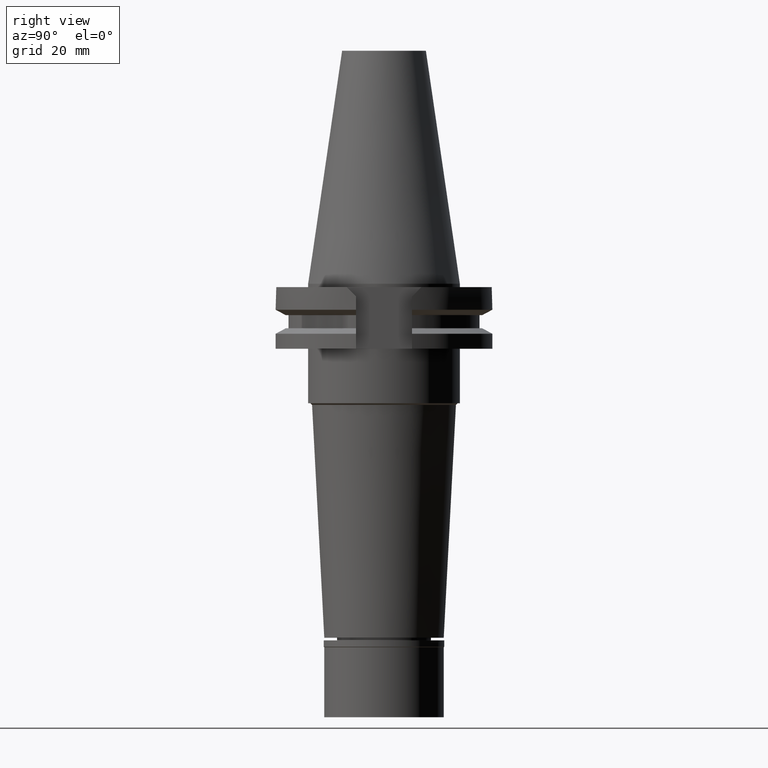
[diagram: clean part render]
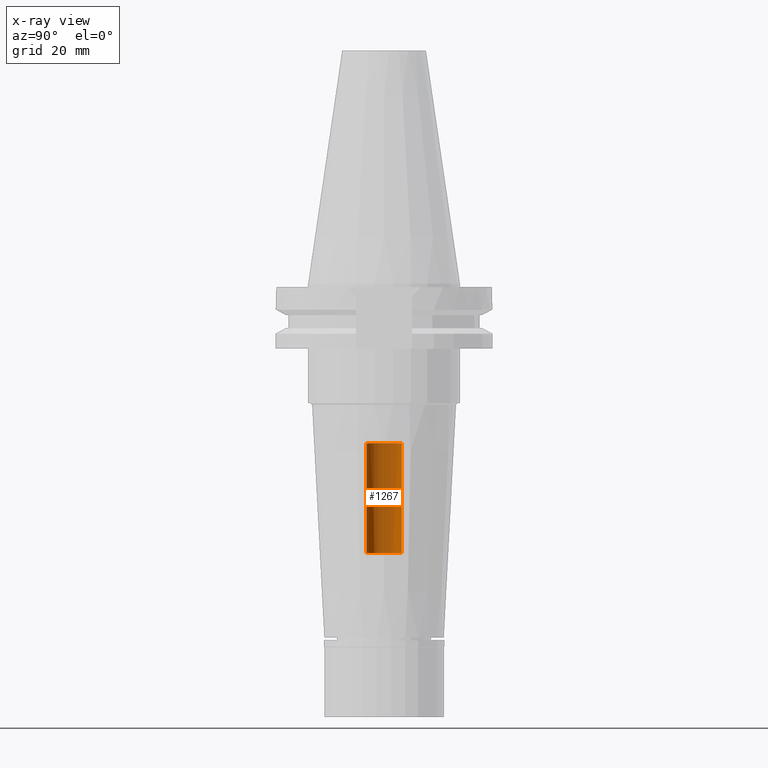
[diagram: x-ray — body ghosted, one internal face saturated and labeled with its STEP entity id]
A machine part, right view, then the same camera in x-ray: the body is ghosted and one INTERNAL B-rep face — a face not visible from any outside direction — is saturated and labeled: STEP entity #1267.
In plain terms, the highlighted cylindrical surface (edge-blend (fillet) strip) has radius 5.2 mm, axis along (0, 0, -1).
Its self-contained STEP definition (entity closure, byte-faithful):
#16 = CYLINDRICAL_SURFACE ( 'NONE', #1878, 5.200000000000000178 ) ;
#129 = ORIENTED_EDGE ( 'NONE', *, *, #2581, .T. ) ;
#488 = DIRECTION ( 'NONE',  ( 0.0000000000000000000, 1.000000000000000000, 0.0000000000000000000 ) ) ;
#516 = EDGE_LOOP ( 'NONE', ( #129, #2124, #1113, #973 ) ) ;
#540 = CIRCLE ( 'NONE', #2702, 5.200000000000000178 ) ;
#631 = CARTESIAN_POINT ( 'NONE',  ( 0.0000000000000000000, 2.175921816554999513E-14, -79.00000000000000000 ) ) ;
#771 = VERTEX_POINT ( 'NONE', #2456 ) ;
#782 = FACE_OUTER_BOUND ( 'NONE', #516, .T. ) ;
#783 = DIRECTION ( 'NONE',  ( 0.0000000000000000000, 0.0000000000000000000, 1.000000000000000000 ) ) ;
#814 = DIRECTION ( 'NONE',  ( 0.0000000000000000000, -1.000000000000000000, 0.0000000000000000000 ) ) ;
#908 = VERTEX_POINT ( 'NONE', #1610 ) ;
#973 = ORIENTED_EDGE ( 'NONE', *, *, #1577, .T. ) ;
#1113 = ORIENTED_EDGE ( 'NONE', *, *, #2424, .T. ) ;
#1150 = DIRECTION ( 'NONE',  ( 0.0000000000000000000, 0.0000000000000000000, -1.000000000000000000 ) ) ;
#1267 = ADVANCED_FACE ( 'NONE', ( #782 ), #16, .F. ) ;
#1354 = CARTESIAN_POINT ( 'NONE',  ( 0.0000000000000000000, 2.175921816554999513E-14, 77.67749999999999488 ) ) ;
#1430 = DIRECTION ( 'NONE',  ( 0.0000000000000000000, 0.0000000000000000000, 1.000000000000000000 ) ) ;
#1489 = CARTESIAN_POINT ( 'NONE',  ( 0.0000000000000000000, 5.200000000000000178, -79.00000000000000000 ) ) ;
#1572 = CIRCLE ( 'NONE', #1624, 5.200000000000000178 ) ;
#1577 = EDGE_CURVE ( 'NONE', #908, #771, #2559, .T. ) ;
#1610 = CARTESIAN_POINT ( 'NONE',  ( 0.0000000000000000000, 5.200000000000000178, -79.00000000000000000 ) ) ;
#1624 = AXIS2_PLACEMENT_3D ( 'NONE', #2827, #783, #488 ) ;
#1691 = LINE ( 'NONE', #3265, #2339 ) ;
#1878 = AXIS2_PLACEMENT_3D ( 'NONE', #1354, #2105, #814 ) ;
#1917 = CARTESIAN_POINT ( 'NONE',  ( 0.0000000000000000000, -5.200000000000000178, -46.75000000000000000 ) ) ;
#1978 = DIRECTION ( 'NONE',  ( 0.0000000000000000000, 0.0000000000000000000, 1.000000000000000000 ) ) ;
#2105 = DIRECTION ( 'NONE',  ( 0.0000000000000000000, 0.0000000000000000000, -1.000000000000000000 ) ) ;
#2124 = ORIENTED_EDGE ( 'NONE', *, *, #2449, .F. ) ;
#2141 = CARTESIAN_POINT ( 'NONE',  ( 0.0000000000000000000, -5.200000000000000178, -79.00000000000000000 ) ) ;
#2237 = DIRECTION ( 'NONE',  ( 0.0000000000000000000, -1.000000000000000000, 0.0000000000000000000 ) ) ;
#2339 = VECTOR ( 'NONE', #1430, 1000.000000000000000 ) ;
#2424 = EDGE_CURVE ( 'NONE', #2843, #908, #540, .T. ) ;
#2449 = EDGE_CURVE ( 'NONE', #2843, #3005, #1691, .T. ) ;
#2456 = CARTESIAN_POINT ( 'NONE',  ( 0.0000000000000000000, 5.200000000000000178, -46.75000000000000000 ) ) ;
#2559 = LINE ( 'NONE', #1489, #3020 ) ;
#2581 = EDGE_CURVE ( 'NONE', #771, #3005, #1572, .T. ) ;
#2702 = AXIS2_PLACEMENT_3D ( 'NONE', #631, #1150, #2237 ) ;
#2827 = CARTESIAN_POINT ( 'NONE',  ( 0.0000000000000000000, 2.175921816554999513E-14, -46.75000000000000000 ) ) ;
#2843 = VERTEX_POINT ( 'NONE', #2141 ) ;
#3005 = VERTEX_POINT ( 'NONE', #1917 ) ;
#3020 = VECTOR ( 'NONE', #1978, 1000.000000000000000 ) ;
#3265 = CARTESIAN_POINT ( 'NONE',  ( 0.0000000000000000000, -5.200000000000000178, -79.00000000000000000 ) ) ;